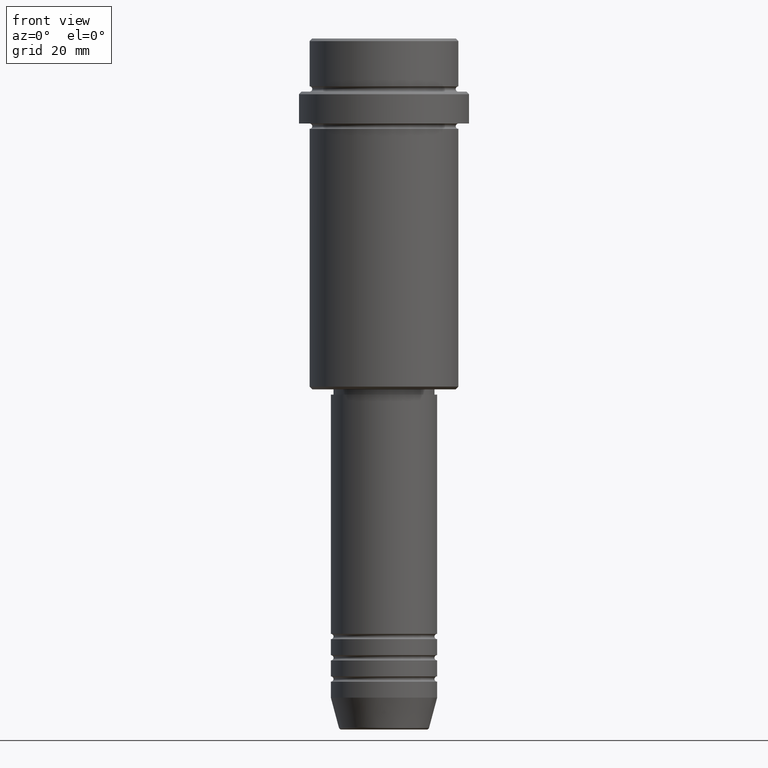
[diagram: clean part render]
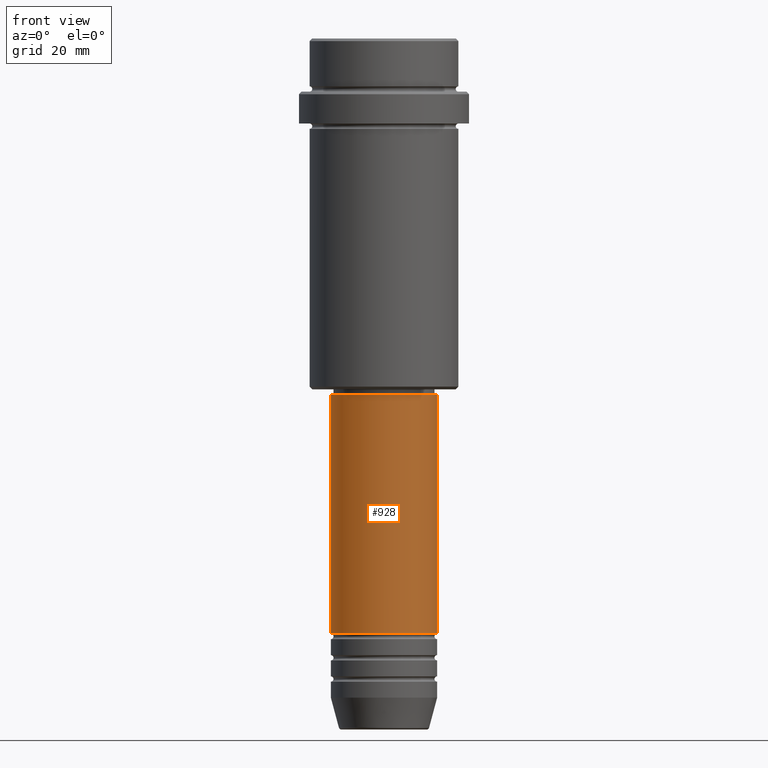
[diagram: same view with one face highlighted and labeled with its STEP entity id]
A machine part, front view. The second image highlights one B-rep face of the part: STEP entity #928.
In plain terms, the highlighted cylindrical surface (partial cylindrical patch) has radius 10 mm, axis along (-0, -0, 1).
Its self-contained STEP definition (entity closure, byte-faithful):
#32 = VERTEX_POINT ( 'NONE', #806 ) ;
#71 = ORIENTED_EDGE ( 'NONE', *, *, #1186, .F. ) ;
#116 = DIRECTION ( 'NONE',  ( -0.000000000000000000, -0.000000000000000000, 1.000000000000000000 ) ) ;
#145 = CYLINDRICAL_SURFACE ( 'NONE', #890, 10.00000000000000178 ) ;
#149 = DIRECTION ( 'NONE',  ( 1.000000000000000000, 0.000000000000000000, 0.000000000000000000 ) ) ;
#195 = EDGE_CURVE ( 'NONE', #1014, #32, #1366, .T. ) ;
#268 = CARTESIAN_POINT ( 'NONE',  ( 0.000000000000000000, 0.000000000000000000, -67.00000000000000000 ) ) ;
#321 = ORIENTED_EDGE ( 'NONE', *, *, #195, .T. ) ;
#380 = DIRECTION ( 'NONE',  ( 1.000000000000000000, 0.000000000000000000, 0.000000000000000000 ) ) ;
#406 = VERTEX_POINT ( 'NONE', #466 ) ;
#464 = CARTESIAN_POINT ( 'NONE',  ( 0.000000000000000000, 0.000000000000000000, -111.9999999999998721 ) ) ;
#466 = CARTESIAN_POINT ( 'NONE',  ( -10.00000000000000178, 1.224646799147353454E-15, -67.00000000000000000 ) ) ;
#507 = CIRCLE ( 'NONE', #782, 10.00000000000000178 ) ;
#515 = CARTESIAN_POINT ( 'NONE',  ( 10.00000000000000178, 0.000000000000000000, 0.000000000000000000 ) ) ;
#640 = DIRECTION ( 'NONE',  ( -0.000000000000000000, -0.000000000000000000, 1.000000000000000000 ) ) ;
#692 = CARTESIAN_POINT ( 'NONE',  ( 0.000000000000000000, 0.000000000000000000, 0.000000000000000000 ) ) ;
#697 = DIRECTION ( 'NONE',  ( -0.000000000000000000, -0.000000000000000000, 1.000000000000000000 ) ) ;
#706 = CARTESIAN_POINT ( 'NONE',  ( -10.00000000000000000, 1.224646799147353256E-15, -111.9999999999998721 ) ) ;
#759 = AXIS2_PLACEMENT_3D ( 'NONE', #464, #697, #893 ) ;
#782 = AXIS2_PLACEMENT_3D ( 'NONE', #268, #1067, #380 ) ;
#806 = CARTESIAN_POINT ( 'NONE',  ( 10.00000000000000178, 0.000000000000000000, -67.00000000000000000 ) ) ;
#852 = CARTESIAN_POINT ( 'NONE',  ( -10.00000000000000178, 1.224646799147353454E-15, 0.000000000000000000 ) ) ;
#890 = AXIS2_PLACEMENT_3D ( 'NONE', #692, #1238, #149 ) ;
#892 = ORIENTED_EDGE ( 'NONE', *, *, #1025, .F. ) ;
#893 = DIRECTION ( 'NONE',  ( 1.000000000000000000, 0.000000000000000000, 0.000000000000000000 ) ) ;
#920 = FACE_OUTER_BOUND ( 'NONE', #1124, .T. ) ;
#928 = ADVANCED_FACE ( 'NONE', ( #920 ), #145, .T. ) ;
#977 = EDGE_CURVE ( 'NONE', #1354, #1014, #1191, .T. ) ;
#1014 = VERTEX_POINT ( 'NONE', #1046 ) ;
#1025 = EDGE_CURVE ( 'NONE', #406, #32, #507, .T. ) ;
#1046 = CARTESIAN_POINT ( 'NONE',  ( 10.00000000000000000, 0.000000000000000000, -111.9999999999998721 ) ) ;
#1067 = DIRECTION ( 'NONE',  ( -0.000000000000000000, -0.000000000000000000, 1.000000000000000000 ) ) ;
#1116 = VECTOR ( 'NONE', #640, 1000.000000000000000 ) ;
#1124 = EDGE_LOOP ( 'NONE', ( #71, #1307, #321, #892 ) ) ;
#1182 = LINE ( 'NONE', #852, #1395 ) ;
#1186 = EDGE_CURVE ( 'NONE', #1354, #406, #1182, .T. ) ;
#1191 = CIRCLE ( 'NONE', #759, 10.00000000000000000 ) ;
#1238 = DIRECTION ( 'NONE',  ( -0.000000000000000000, -0.000000000000000000, 1.000000000000000000 ) ) ;
#1307 = ORIENTED_EDGE ( 'NONE', *, *, #977, .T. ) ;
#1354 = VERTEX_POINT ( 'NONE', #706 ) ;
#1366 = LINE ( 'NONE', #515, #1116 ) ;
#1395 = VECTOR ( 'NONE', #116, 1000.000000000000000 ) ;